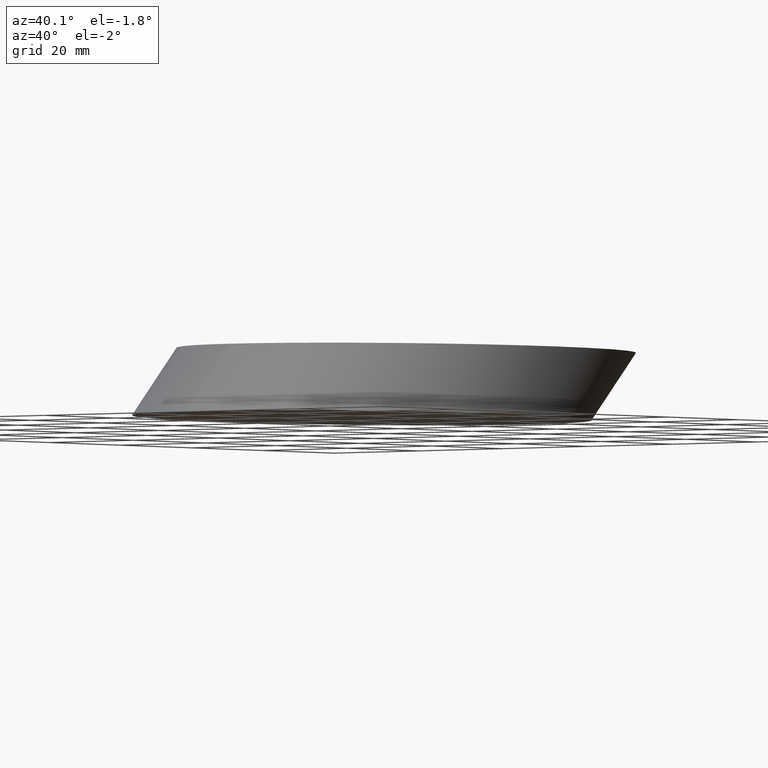
[diagram: clean part render]
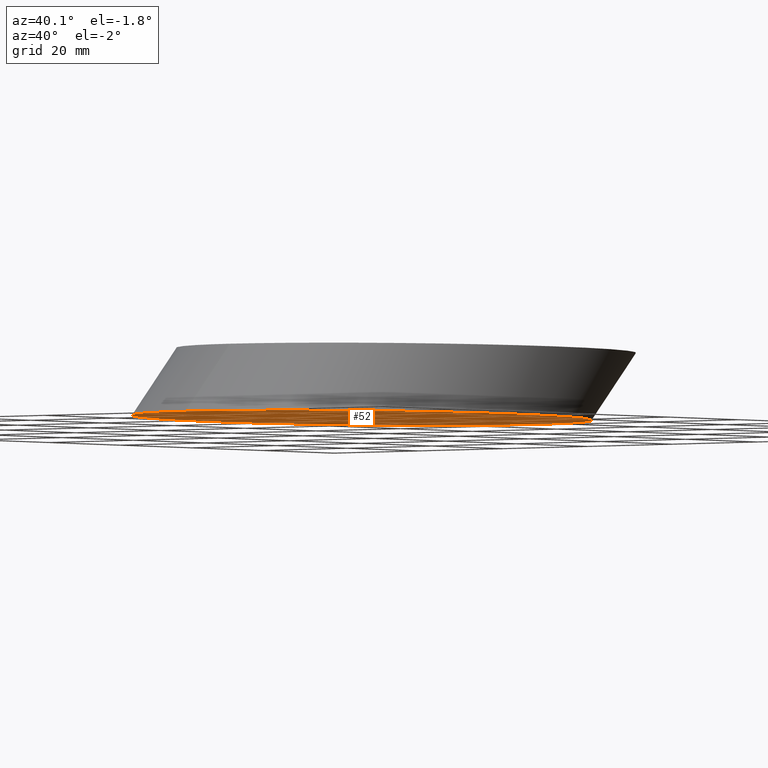
[diagram: same view with one face highlighted and labeled with its STEP entity id]
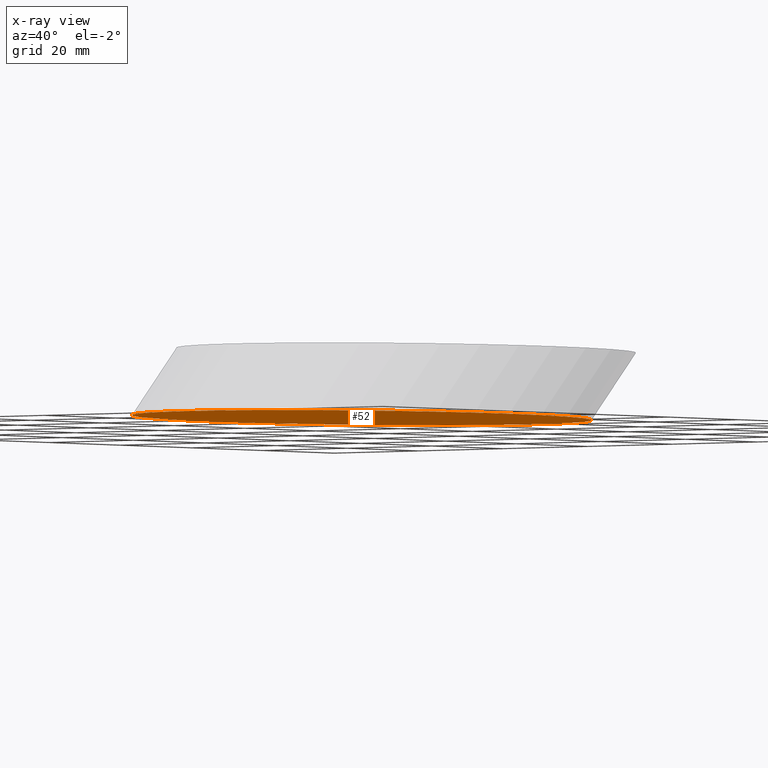
[diagram: x-ray of the same camera — body ghosted, the highlighted face saturated]
A machine part, auxiliary view. The second image highlights one B-rep face of the part: STEP entity #52.
The next image is the same camera in x-ray: the body ghosted, the highlighted face saturated — about 0% of this face is hidden behind the body in this view.
In plain terms, the highlighted planar face has unit normal (0, 0, 1).
Its self-contained STEP definition (entity closure, byte-faithful):
#3 = CARTESIAN_POINT ( 'NONE',  ( 54.39238298171605400, 85.29387153032210700, 0.0000000000000000000 ) ) ;
#12 = DIRECTION ( 'NONE',  ( 1.000000000000000000, 0.0000000000000000000, -0.0000000000000000000 ) ) ;
#13 = CARTESIAN_POINT ( 'NONE',  ( 54.39238298171604700, -13.71612846967790100, 0.0000000000000000000 ) ) ;
#14 = CARTESIAN_POINT ( 'NONE',  ( 54.39238298171605400, 35.78887153032210500, 0.0000000000000000000 ) ) ;
#17 = AXIS2_PLACEMENT_3D ( 'NONE', #14, #24, #12 ) ;
#24 = DIRECTION ( 'NONE',  ( 0.0000000000000000000, 0.0000000000000000000, 1.000000000000000000 ) ) ;
#34 = FACE_OUTER_BOUND ( 'NONE', #134, .T. ) ;
#41 = CARTESIAN_POINT ( 'NONE',  ( 54.39238298171604700, -13.71612846967790100, 0.0000000000000000000 ) ) ;
#42 = VERTEX_POINT ( 'NONE', #13 ) ;
#45 =( BOUNDED_CURVE ( )  B_SPLINE_CURVE ( 3, ( #41, #104, #130, #3 ),
 .UNSPECIFIED., .F., .T. ) 
 B_SPLINE_CURVE_WITH_KNOTS ( ( 4, 4 ),
 ( 3.141592653589793100, 6.283185307179586200 ),
 .UNSPECIFIED. ) 
 CURVE ( )  GEOMETRIC_REPRESENTATION_ITEM ( )  RATIONAL_B_SPLINE_CURVE ( ( 1.000000000000000000, 0.3333333333333333700, 0.3333333333333333700, 1.000000000000000000 ) ) 
 REPRESENTATION_ITEM ( '' )  );
#51 = VERTEX_POINT ( 'NONE', #136 ) ;
#52 = ADVANCED_FACE ( 'NONE', ( #34 ), #147, .F. ) ;
#66 = CARTESIAN_POINT ( 'NONE',  ( -15.60761701828394100, 85.29387153032210700, 0.0000000000000000000 ) ) ;
#69 = CARTESIAN_POINT ( 'NONE',  ( 54.39238298171604700, -13.71612846967790100, 0.0000000000000000000 ) ) ;
#71 = ORIENTED_EDGE ( 'NONE', *, *, #137, .F. ) ;
#74 =( BOUNDED_CURVE ( )  B_SPLINE_CURVE ( 3, ( #99, #66, #115, #69 ),
 .UNSPECIFIED., .F., .T. ) 
 B_SPLINE_CURVE_WITH_KNOTS ( ( 4, 4 ),
 ( 0.0000000000000000000, 3.141592653589793100 ),
 .UNSPECIFIED. ) 
 CURVE ( )  GEOMETRIC_REPRESENTATION_ITEM ( )  RATIONAL_B_SPLINE_CURVE ( ( 1.000000000000000000, 0.3333333333333333700, 0.3333333333333333700, 1.000000000000000000 ) ) 
 REPRESENTATION_ITEM ( '' )  );
#95 = EDGE_CURVE ( 'NONE', #51, #42, #74, .T. ) ;
#99 = CARTESIAN_POINT ( 'NONE',  ( 54.39238298171605400, 85.29387153032210700, 0.0000000000000000000 ) ) ;
#104 = CARTESIAN_POINT ( 'NONE',  ( 124.3923829817160400, -13.71612846967791400, 0.0000000000000000000 ) ) ;
#115 = CARTESIAN_POINT ( 'NONE',  ( -15.60761701828394800, -13.71612846967789200, 0.0000000000000000000 ) ) ;
#129 = ORIENTED_EDGE ( 'NONE', *, *, #95, .F. ) ;
#130 = CARTESIAN_POINT ( 'NONE',  ( 124.3923829817160400, 85.29387153032210700, 0.0000000000000000000 ) ) ;
#134 = EDGE_LOOP ( 'NONE', ( #129, #71 ) ) ;
#136 = CARTESIAN_POINT ( 'NONE',  ( 54.39238298171605400, 85.29387153032210700, 0.0000000000000000000 ) ) ;
#137 = EDGE_CURVE ( 'NONE', #42, #51, #45, .T. ) ;
#147 = PLANE ( 'NONE',  #17 ) ;